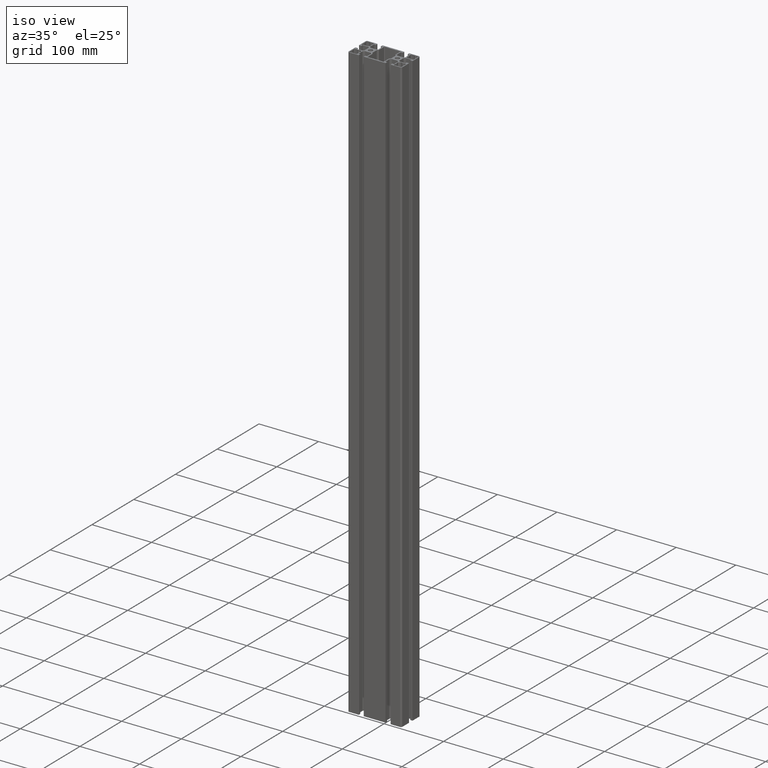
[diagram: clean part render]
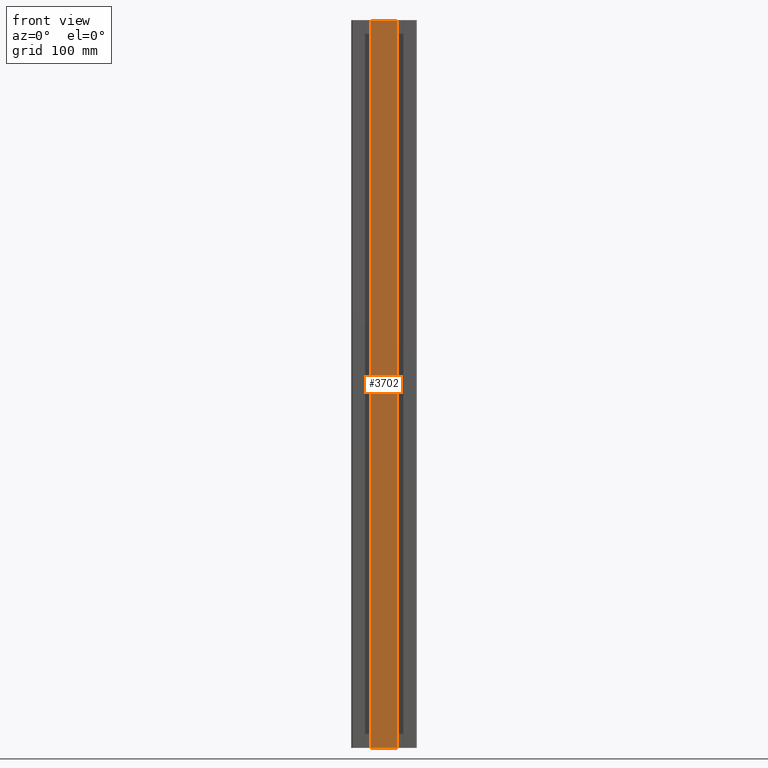
[diagram: tour spotlight — one face highlighted and labeled with its STEP entity id]
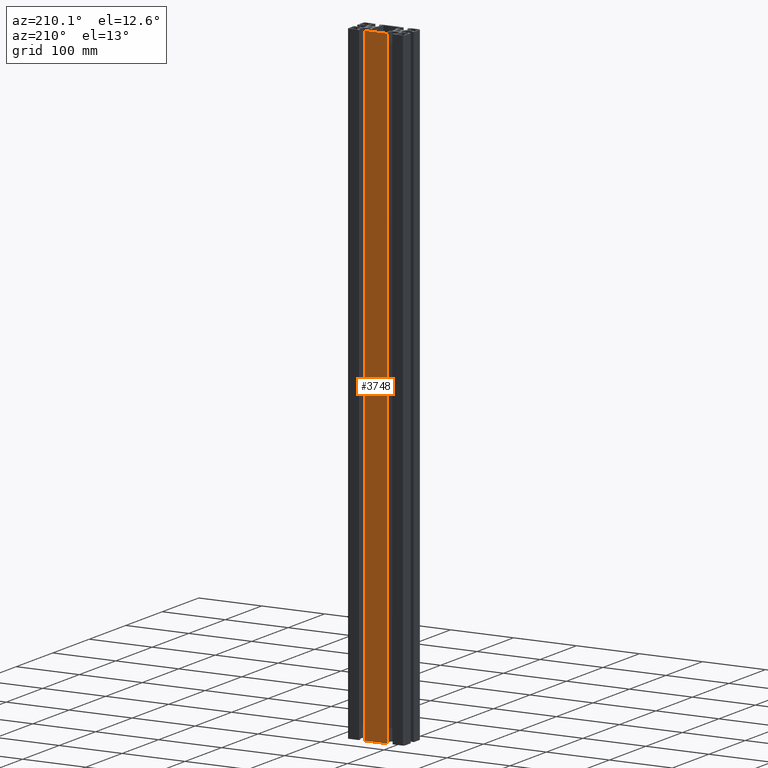
[diagram: tour spotlight — one face highlighted and labeled with its STEP entity id]
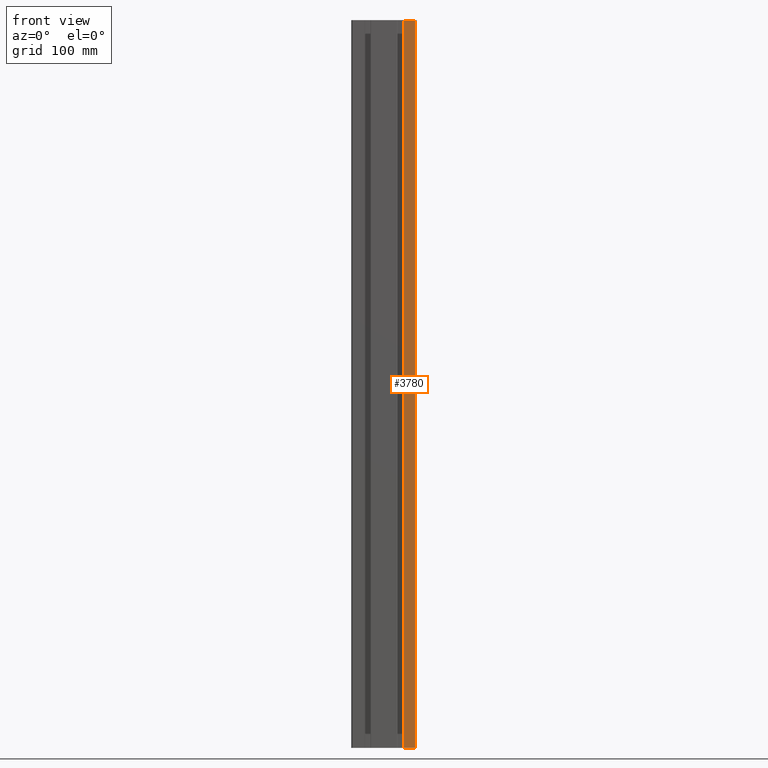
[diagram: tour spotlight — one face highlighted and labeled with its STEP entity id]
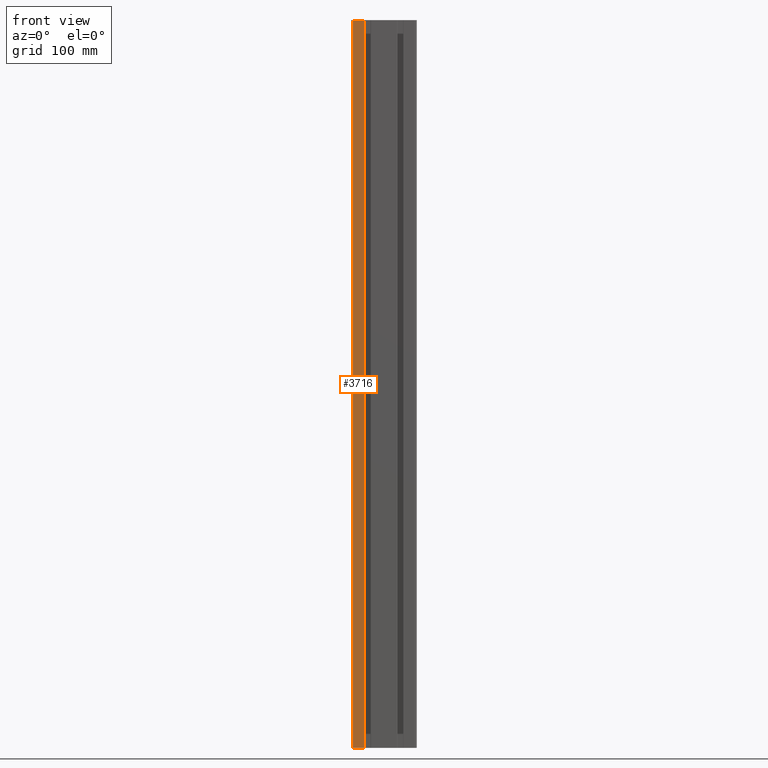
[diagram: tour spotlight — one face highlighted and labeled with its STEP entity id]
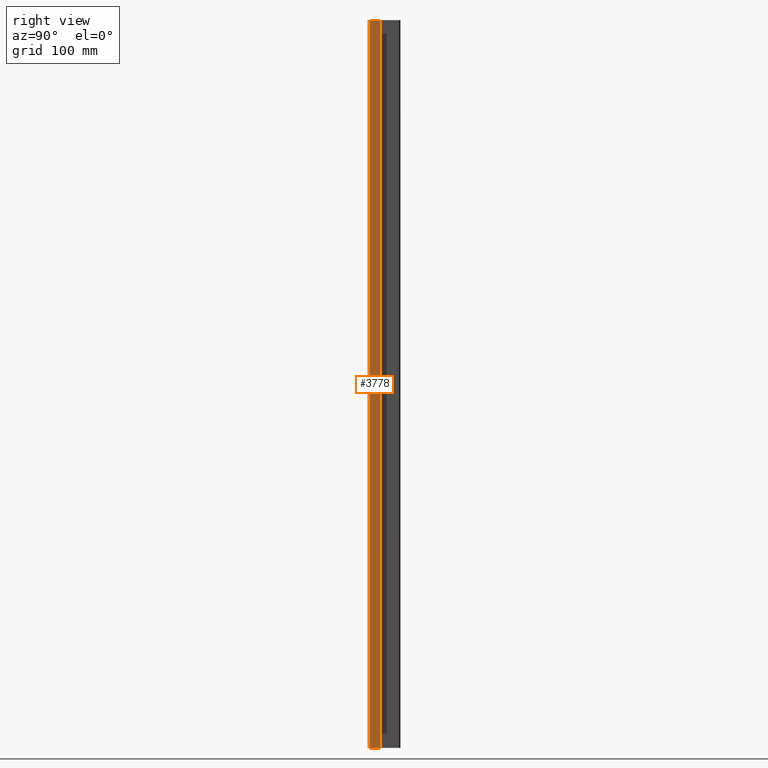
[diagram: tour spotlight — one face highlighted and labeled with its STEP entity id]
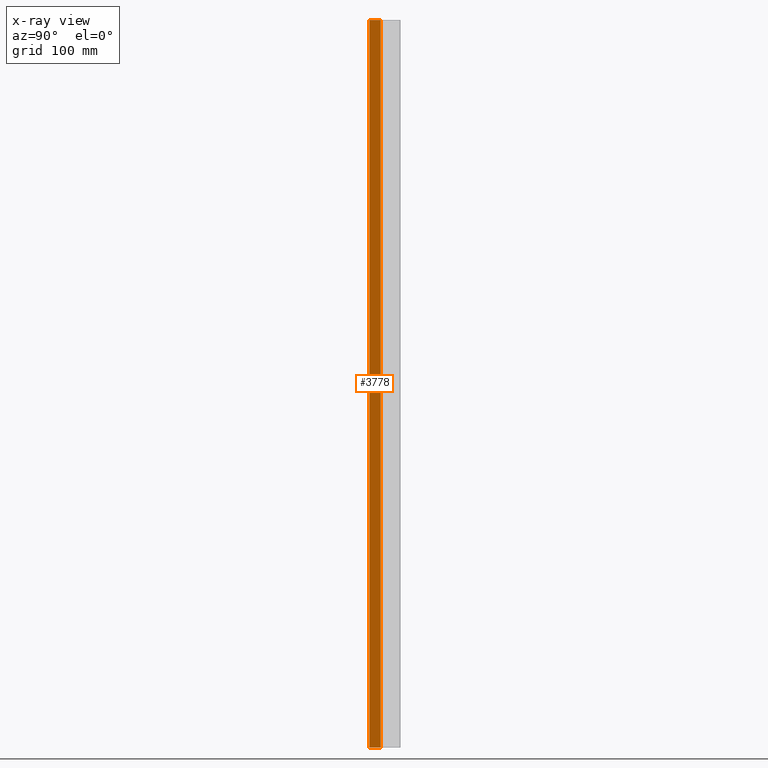
[diagram: x-ray of the same camera — body ghosted, this tour face saturated]
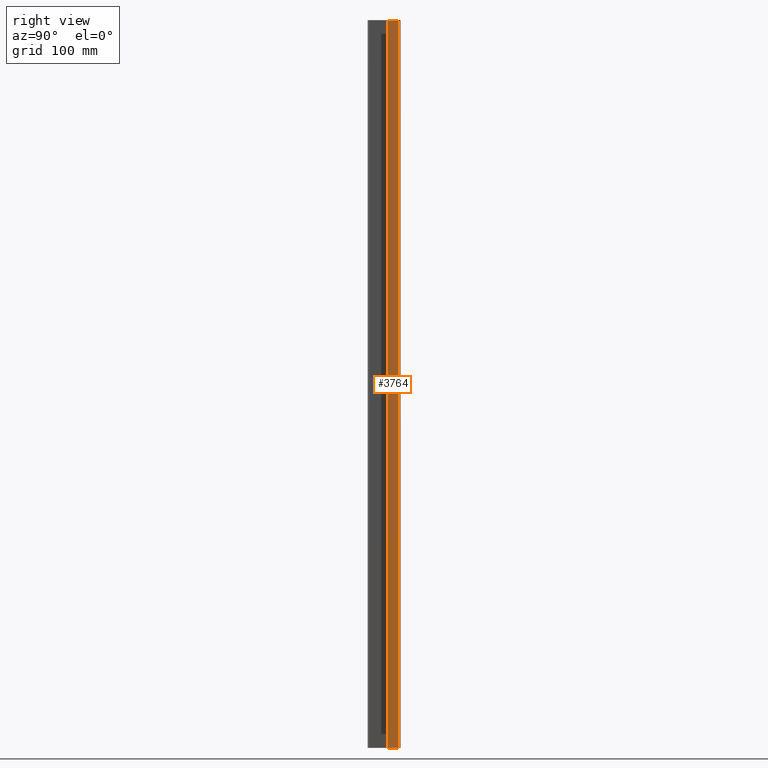
[diagram: tour spotlight — one face highlighted and labeled with its STEP entity id]
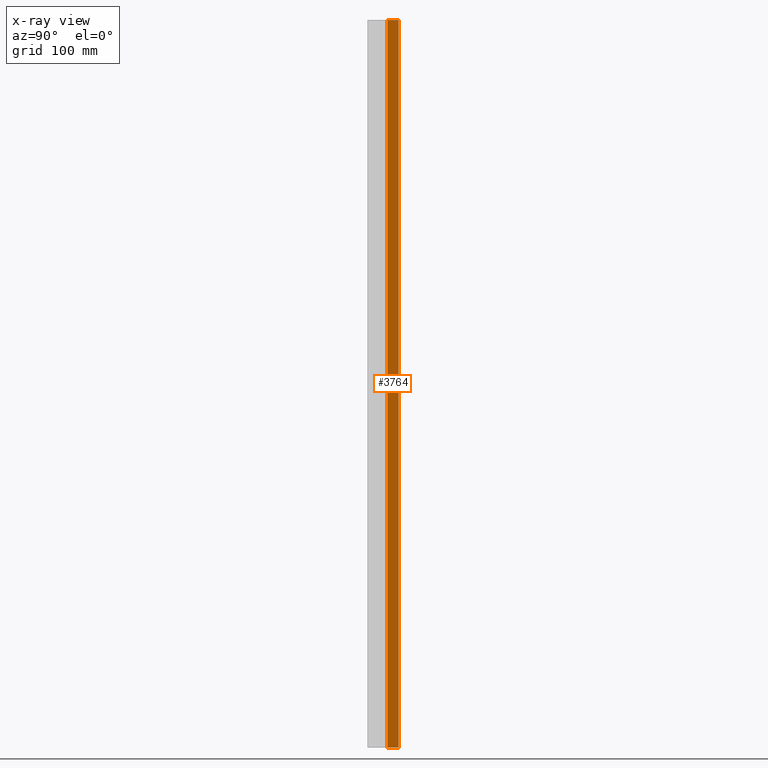
[diagram: x-ray of the same camera — body ghosted, this tour face saturated]
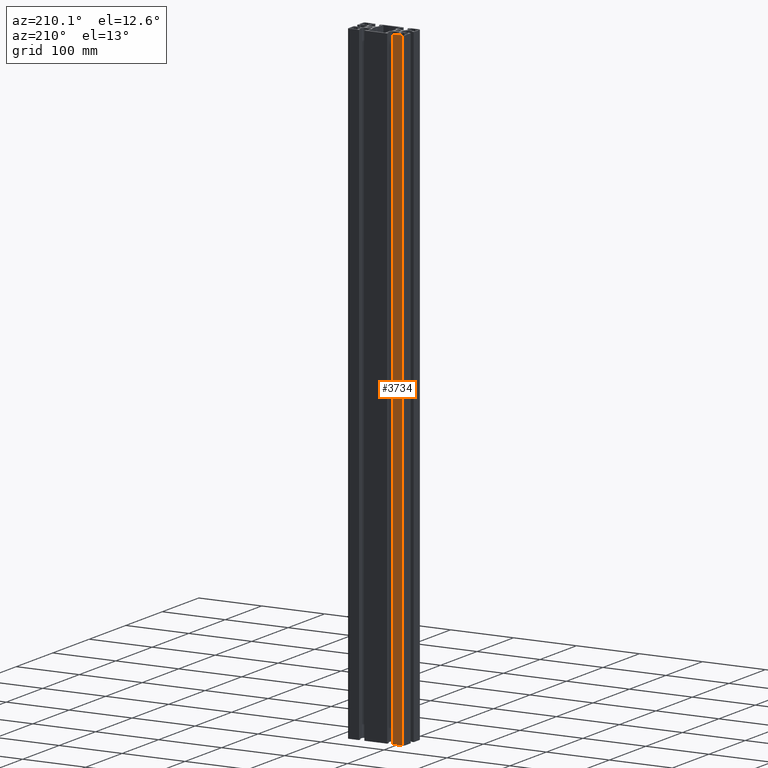
[diagram: tour spotlight — one face highlighted and labeled with its STEP entity id]
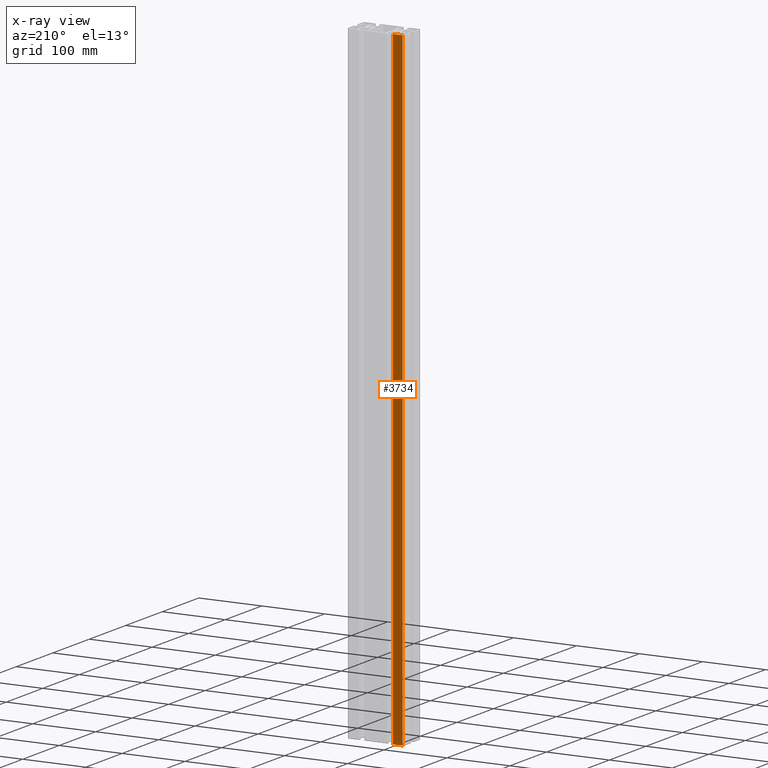
[diagram: x-ray of the same camera — body ghosted, this tour face saturated]
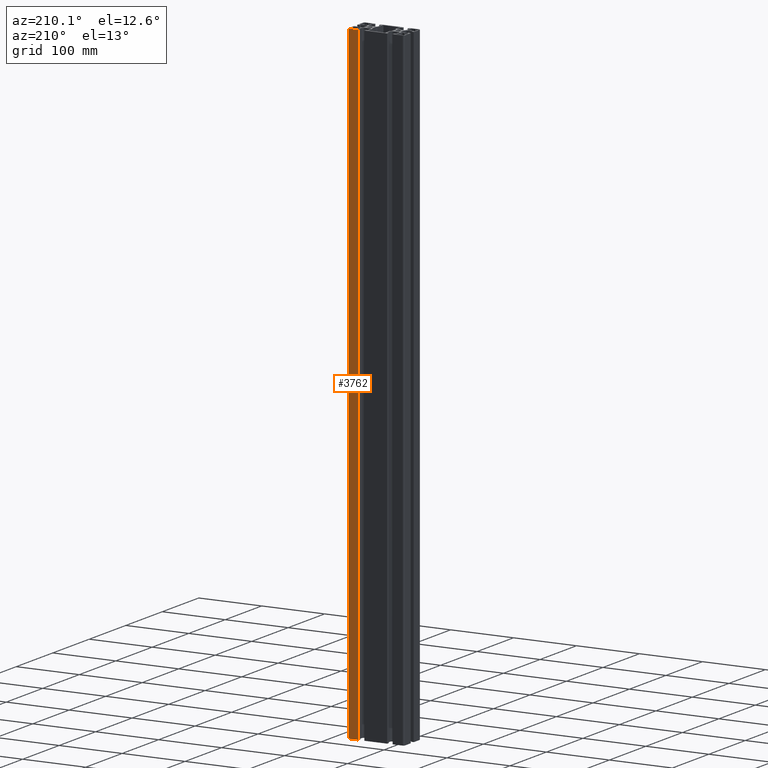
[diagram: tour spotlight — one face highlighted and labeled with its STEP entity id]
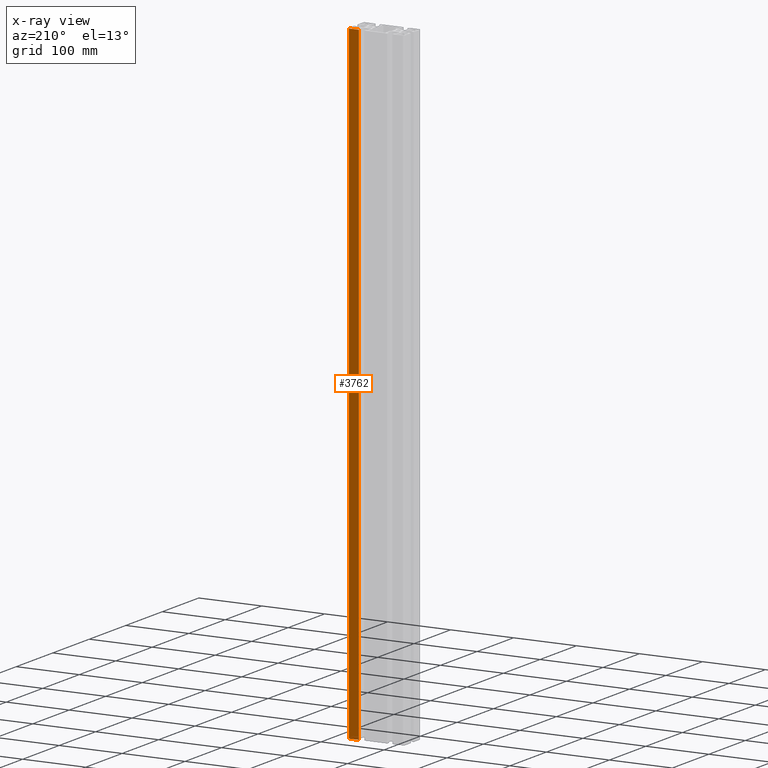
[diagram: x-ray of the same camera — body ghosted, this tour face saturated]
A machine part: a face-by-face anatomy tour. The part has 188 B-rep faces; the first image is the clean iso view, then the 8 largest visible faces are spotlighted one at a time (largest first), each with its STEP entity span.

Face 1 — front view, entity #3702. In plain terms, the highlighted planar face has unit normal (0, -1, 0).
Definition (entity closure, byte-faithful):
#84=PLANE('',#4085);
#236=FACE_OUTER_BOUND('',#438,.T.);
#438=EDGE_LOOP('',(#3179,#3180,#3181,#3182));
#635=LINE('',#5624,#1021);
#759=LINE('',#6057,#1145);
#824=LINE('',#6229,#1210);
#825=LINE('',#6231,#1211);
#1021=VECTOR('',#4486,10.);
#1145=VECTOR('',#4824,10.);
#1210=VECTOR('',#5027,10.);
#1211=VECTOR('',#5030,10.);
#1595=VERTEX_POINT('',#5621);
#1596=VERTEX_POINT('',#5623);
#1797=VERTEX_POINT('',#6054);
#1798=VERTEX_POINT('',#6056);
#2003=EDGE_CURVE('',#1596,#1595,#635,.T.);
#2225=EDGE_CURVE('',#1797,#1798,#759,.T.);
#2312=EDGE_CURVE('',#1595,#1798,#824,.T.);
#2313=EDGE_CURVE('',#1596,#1797,#825,.T.);
#3179=ORIENTED_EDGE('',*,*,#2003,.T.);
#3180=ORIENTED_EDGE('',*,*,#2312,.T.);
#3181=ORIENTED_EDGE('',*,*,#2225,.F.);
#3182=ORIENTED_EDGE('',*,*,#2313,.F.);
#3702=ADVANCED_FACE('',(#236),#84,.T.);
#4085=AXIS2_PLACEMENT_3D('',#6230,#5028,#5029);
#4486=DIRECTION('',(1.,0.,0.));
#4824=DIRECTION('',(1.,0.,0.));
#5027=DIRECTION('',(0.,0.,1.));
#5028=DIRECTION('center_axis',(0.,-1.,0.));
#5029=DIRECTION('ref_axis',(1.,0.,0.));
#5030=DIRECTION('',(0.,0.,1.));
#5621=CARTESIAN_POINT('',(18.05,-22.5,0.));
#5623=CARTESIAN_POINT('',(-18.05,-22.5,0.));
#5624=CARTESIAN_POINT('',(-18.05,-22.5,0.));
#6054=CARTESIAN_POINT('',(-18.05,-22.5,1000.));
#6056=CARTESIAN_POINT('',(18.05,-22.5,1000.));
#6057=CARTESIAN_POINT('',(-18.05,-22.5,1000.));
#6229=CARTESIAN_POINT('',(18.05,-22.5,0.));
#6230=CARTESIAN_POINT('Origin',(-18.05,-22.5,0.));
#6231=CARTESIAN_POINT('',(-18.05,-22.5,0.));

Face 2 — auxiliary view, entity #3748. In plain terms, the highlighted planar face has unit normal (0, 1, 0).
Definition (entity closure, byte-faithful):
#110=PLANE('',#4131);
#282=FACE_OUTER_BOUND('',#484,.T.);
#484=EDGE_LOOP('',(#3363,#3364,#3365,#3366));
#661=LINE('',#5716,#1047);
#733=LINE('',#5965,#1119);
#870=LINE('',#6321,#1256);
#871=LINE('',#6323,#1257);
#1047=VECTOR('',#4552,10.);
#1119=VECTOR('',#4758,10.);
#1256=VECTOR('',#5165,10.);
#1257=VECTOR('',#5168,10.);
#1641=VERTEX_POINT('',#5713);
#1642=VERTEX_POINT('',#5715);
#1751=VERTEX_POINT('',#5962);
#1752=VERTEX_POINT('',#5964);
#2049=EDGE_CURVE('',#1642,#1641,#661,.T.);
#2179=EDGE_CURVE('',#1751,#1752,#733,.T.);
#2358=EDGE_CURVE('',#1641,#1752,#870,.T.);
#2359=EDGE_CURVE('',#1642,#1751,#871,.T.);
#3363=ORIENTED_EDGE('',*,*,#2049,.T.);
#3364=ORIENTED_EDGE('',*,*,#2358,.T.);
#3365=ORIENTED_EDGE('',*,*,#2179,.F.);
#3366=ORIENTED_EDGE('',*,*,#2359,.F.);
#3748=ADVANCED_FACE('',(#282),#110,.T.);
#4131=AXIS2_PLACEMENT_3D('',#6322,#5166,#5167);
#4552=DIRECTION('',(-1.,0.,0.));
#4758=DIRECTION('',(-1.,0.,0.));
#5165=DIRECTION('',(0.,0.,1.));
#5166=DIRECTION('center_axis',(0.,1.,0.));
#5167=DIRECTION('ref_axis',(-1.,0.,0.));
#5168=DIRECTION('',(0.,0.,1.));
#5713=CARTESIAN_POINT('',(-18.05,22.5,0.));
#5715=CARTESIAN_POINT('',(18.0500000000022,22.5,0.));
#5716=CARTESIAN_POINT('',(18.0500000000022,22.5,0.));
#5962=CARTESIAN_POINT('',(18.0500000000022,22.5,1000.));
#5964=CARTESIAN_POINT('',(-18.05,22.5,1000.));
#5965=CARTESIAN_POINT('',(18.0500000000022,22.5,1000.));
#6321=CARTESIAN_POINT('',(-18.05,22.5,0.));
#6322=CARTESIAN_POINT('Origin',(18.0500000000022,22.5,0.));
#6323=CARTESIAN_POINT('',(18.0500000000022,22.5,0.));

Face 3 — front view, entity #3780. In plain terms, the highlighted planar face has unit normal (0, -1, 0).
Definition (entity closure, byte-faithful):
#128=PLANE('',#4163);
#314=FACE_OUTER_BOUND('',#516,.T.);
#516=EDGE_LOOP('',(#3491,#3492,#3493,#3494));
#679=LINE('',#5780,#1065);
#715=LINE('',#5901,#1101);
#902=LINE('',#6385,#1288);
#903=LINE('',#6387,#1289);
#1065=VECTOR('',#4598,10.);
#1101=VECTOR('',#4712,10.);
#1288=VECTOR('',#5261,10.);
#1289=VECTOR('',#5264,10.);
#1673=VERTEX_POINT('',#5777);
#1674=VERTEX_POINT('',#5779);
#1719=VERTEX_POINT('',#5898);
#1720=VERTEX_POINT('',#5900);
#2081=EDGE_CURVE('',#1674,#1673,#679,.T.);
#2147=EDGE_CURVE('',#1719,#1720,#715,.T.);
#2390=EDGE_CURVE('',#1673,#1720,#902,.T.);
#2391=EDGE_CURVE('',#1674,#1719,#903,.T.);
#3491=ORIENTED_EDGE('',*,*,#2081,.T.);
#3492=ORIENTED_EDGE('',*,*,#2390,.T.);
#3493=ORIENTED_EDGE('',*,*,#2147,.F.);
#3494=ORIENTED_EDGE('',*,*,#2391,.F.);
#3780=ADVANCED_FACE('',(#314),#128,.T.);
#4163=AXIS2_PLACEMENT_3D('',#6386,#5262,#5263);
#4598=DIRECTION('',(1.,0.,0.));
#4712=DIRECTION('',(1.,0.,0.));
#5261=DIRECTION('',(0.,0.,1.));
#5262=DIRECTION('center_axis',(0.,-1.,0.));
#5263=DIRECTION('ref_axis',(1.,0.,0.));
#5264=DIRECTION('',(0.,0.,1.));
#5777=CARTESIAN_POINT('',(42.5,-22.5,0.));
#5779=CARTESIAN_POINT('',(26.95,-22.5,0.));
#5780=CARTESIAN_POINT('',(26.95,-22.5,0.));
#5898=CARTESIAN_POINT('',(26.95,-22.5,1000.));
#5900=CARTESIAN_POINT('',(42.5,-22.5,1000.));
#5901=CARTESIAN_POINT('',(26.95,-22.5,1000.));
#6385=CARTESIAN_POINT('',(42.5,-22.5,0.));
#6386=CARTESIAN_POINT('Origin',(26.95,-22.5,0.));
#6387=CARTESIAN_POINT('',(26.95,-22.5,0.));

Face 4 — front view, entity #3716. In plain terms, the highlighted planar face has unit normal (0, -1, 0).
Definition (entity closure, byte-faithful):
#92=PLANE('',#4099);
#250=FACE_OUTER_BOUND('',#452,.T.);
#452=EDGE_LOOP('',(#3235,#3236,#3237,#3238));
#643=LINE('',#5652,#1029);
#751=LINE('',#6029,#1137);
#838=LINE('',#6257,#1224);
#839=LINE('',#6259,#1225);
#1029=VECTOR('',#4506,10.);
#1137=VECTOR('',#4804,10.);
#1224=VECTOR('',#5069,10.);
#1225=VECTOR('',#5072,10.);
#1609=VERTEX_POINT('',#5649);
#1610=VERTEX_POINT('',#5651);
#1783=VERTEX_POINT('',#6026);
#1784=VERTEX_POINT('',#6028);
#2017=EDGE_CURVE('',#1610,#1609,#643,.T.);
#2211=EDGE_CURVE('',#1783,#1784,#751,.T.);
#2326=EDGE_CURVE('',#1609,#1784,#838,.T.);
#2327=EDGE_CURVE('',#1610,#1783,#839,.T.);
#3235=ORIENTED_EDGE('',*,*,#2017,.T.);
#3236=ORIENTED_EDGE('',*,*,#2326,.T.);
#3237=ORIENTED_EDGE('',*,*,#2211,.F.);
#3238=ORIENTED_EDGE('',*,*,#2327,.F.);
#3716=ADVANCED_FACE('',(#250),#92,.T.);
#4099=AXIS2_PLACEMENT_3D('',#6258,#5070,#5071);
#4506=DIRECTION('',(1.,0.,0.));
#4804=DIRECTION('',(1.,0.,0.));
#5069=DIRECTION('',(0.,0.,1.));
#5070=DIRECTION('center_axis',(0.,-1.,0.));
#5071=DIRECTION('ref_axis',(1.,0.,0.));
#5072=DIRECTION('',(0.,0.,1.));
#5649=CARTESIAN_POINT('',(-26.95,-22.5,0.));
#5651=CARTESIAN_POINT('',(-42.5,-22.5,0.));
#5652=CARTESIAN_POINT('',(-42.5,-22.5,0.));
#6026=CARTESIAN_POINT('',(-42.5,-22.5,1000.));
#6028=CARTESIAN_POINT('',(-26.95,-22.5,1000.));
#6029=CARTESIAN_POINT('',(-42.5,-22.5,1000.));
#6257=CARTESIAN_POINT('',(-26.95,-22.5,0.));
#6258=CARTESIAN_POINT('Origin',(-42.5,-22.5,0.));
#6259=CARTESIAN_POINT('',(-42.5,-22.5,0.));

Face 5 — right view, entity #3778. An x-ray twin of the same camera follows (body ghosted, this face saturated) — the face is partly hidden behind the body. In plain terms, the highlighted planar face has unit normal (1, -0, 0).
Definition (entity closure, byte-faithful):
#127=PLANE('',#4161);
#312=FACE_OUTER_BOUND('',#514,.T.);
#514=EDGE_LOOP('',(#3483,#3484,#3485,#3486));
#678=LINE('',#5776,#1064);
#716=LINE('',#5905,#1102);
#900=LINE('',#6381,#1286);
#901=LINE('',#6383,#1287);
#1064=VECTOR('',#4595,10.);
#1102=VECTOR('',#4715,10.);
#1286=VECTOR('',#5255,10.);
#1287=VECTOR('',#5258,10.);
#1671=VERTEX_POINT('',#5773);
#1672=VERTEX_POINT('',#5775);
#1721=VERTEX_POINT('',#5902);
#1722=VERTEX_POINT('',#5904);
#2079=EDGE_CURVE('',#1672,#1671,#678,.T.);
#2149=EDGE_CURVE('',#1721,#1722,#716,.T.);
#2388=EDGE_CURVE('',#1671,#1722,#900,.T.);
#2389=EDGE_CURVE('',#1672,#1721,#901,.T.);
#3483=ORIENTED_EDGE('',*,*,#2079,.T.);
#3484=ORIENTED_EDGE('',*,*,#2388,.T.);
#3485=ORIENTED_EDGE('',*,*,#2149,.F.);
#3486=ORIENTED_EDGE('',*,*,#2389,.F.);
#3778=ADVANCED_FACE('',(#312),#127,.T.);
#4161=AXIS2_PLACEMENT_3D('',#6382,#5256,#5257);
#4595=DIRECTION('',(5.71175832604582E-16,1.,0.));
#4715=DIRECTION('',(5.71175832604582E-16,1.,0.));
#5255=DIRECTION('',(0.,0.,1.));
#5256=DIRECTION('center_axis',(1.,-5.71175832604582E-16,0.));
#5257=DIRECTION('ref_axis',(5.71175832604582E-16,1.,0.));
#5258=DIRECTION('',(0.,0.,1.));
#5773=CARTESIAN_POINT('',(45.,-4.45,0.));
#5775=CARTESIAN_POINT('',(45.,-20.,0.));
#5776=CARTESIAN_POINT('',(45.,-20.,0.));
#5902=CARTESIAN_POINT('',(45.,-20.,1000.));
#5904=CARTESIAN_POINT('',(45.,-4.45,1000.));
#5905=CARTESIAN_POINT('',(45.,-20.,1000.));
#6381=CARTESIAN_POINT('',(45.,-4.45,0.));
#6382=CARTESIAN_POINT('Origin',(45.,-20.,0.));
#6383=CARTESIAN_POINT('',(45.,-20.,0.));

Face 6 — right view, entity #3764. An x-ray twin of the same camera follows (body ghosted, this face saturated) — the face is partly hidden behind the body. In plain terms, the highlighted planar face has unit normal (1, -0, 0).
Definition (entity closure, byte-faithful):
#119=PLANE('',#4147);
#298=FACE_OUTER_BOUND('',#500,.T.);
#500=EDGE_LOOP('',(#3427,#3428,#3429,#3430));
#670=LINE('',#5748,#1056);
#724=LINE('',#5933,#1110);
#886=LINE('',#6353,#1272);
#887=LINE('',#6355,#1273);
#1056=VECTOR('',#4575,10.);
#1110=VECTOR('',#4735,10.);
#1272=VECTOR('',#5213,10.);
#1273=VECTOR('',#5216,10.);
#1657=VERTEX_POINT('',#5745);
#1658=VERTEX_POINT('',#5747);
#1735=VERTEX_POINT('',#5930);
#1736=VERTEX_POINT('',#5932);
#2065=EDGE_CURVE('',#1658,#1657,#670,.T.);
#2163=EDGE_CURVE('',#1735,#1736,#724,.T.);
#2374=EDGE_CURVE('',#1657,#1736,#886,.T.);
#2375=EDGE_CURVE('',#1658,#1735,#887,.T.);
#3427=ORIENTED_EDGE('',*,*,#2065,.T.);
#3428=ORIENTED_EDGE('',*,*,#2374,.T.);
#3429=ORIENTED_EDGE('',*,*,#2163,.F.);
#3430=ORIENTED_EDGE('',*,*,#2375,.F.);
#3764=ADVANCED_FACE('',(#298),#119,.T.);
#4147=AXIS2_PLACEMENT_3D('',#6354,#5214,#5215);
#4575=DIRECTION('',(5.71175832604582E-16,1.,0.));
#4735=DIRECTION('',(5.71175832604582E-16,1.,0.));
#5213=DIRECTION('',(0.,0.,1.));
#5214=DIRECTION('center_axis',(1.,-5.71175832604582E-16,0.));
#5215=DIRECTION('ref_axis',(5.71175832604582E-16,1.,0.));
#5216=DIRECTION('',(0.,0.,1.));
#5745=CARTESIAN_POINT('',(45.,20.,0.));
#5747=CARTESIAN_POINT('',(45.,4.45,0.));
#5748=CARTESIAN_POINT('',(45.,4.45,0.));
#5930=CARTESIAN_POINT('',(45.,4.45,1000.));
#5932=CARTESIAN_POINT('',(45.,20.,1000.));
#5933=CARTESIAN_POINT('',(45.,4.45,1000.));
#6353=CARTESIAN_POINT('',(45.,20.,0.));
#6354=CARTESIAN_POINT('Origin',(45.,4.45,0.));
#6355=CARTESIAN_POINT('',(45.,4.45,0.));

Face 7 — auxiliary view, entity #3734. An x-ray twin of the same camera follows (body ghosted, this face saturated) — the face is partly hidden behind the body. In plain terms, the highlighted planar face has unit normal (0, 1, 0).
Definition (entity closure, byte-faithful):
#102=PLANE('',#4117);
#268=FACE_OUTER_BOUND('',#470,.T.);
#470=EDGE_LOOP('',(#3307,#3308,#3309,#3310));
#653=LINE('',#5688,#1039);
#741=LINE('',#5993,#1127);
#856=LINE('',#6293,#1242);
#857=LINE('',#6295,#1243);
#1039=VECTOR('',#4532,10.);
#1127=VECTOR('',#4778,10.);
#1242=VECTOR('',#5123,10.);
#1243=VECTOR('',#5126,10.);
#1627=VERTEX_POINT('',#5685);
#1628=VERTEX_POINT('',#5687);
#1765=VERTEX_POINT('',#5990);
#1766=VERTEX_POINT('',#5992);
#2035=EDGE_CURVE('',#1628,#1627,#653,.T.);
#2193=EDGE_CURVE('',#1765,#1766,#741,.T.);
#2344=EDGE_CURVE('',#1627,#1766,#856,.T.);
#2345=EDGE_CURVE('',#1628,#1765,#857,.T.);
#3307=ORIENTED_EDGE('',*,*,#2035,.T.);
#3308=ORIENTED_EDGE('',*,*,#2344,.T.);
#3309=ORIENTED_EDGE('',*,*,#2193,.F.);
#3310=ORIENTED_EDGE('',*,*,#2345,.F.);
#3734=ADVANCED_FACE('',(#268),#102,.T.);
#4117=AXIS2_PLACEMENT_3D('',#6294,#5124,#5125);
#4532=DIRECTION('',(-1.,0.,0.));
#4778=DIRECTION('',(-1.,0.,0.));
#5123=DIRECTION('',(0.,0.,1.));
#5124=DIRECTION('center_axis',(0.,1.,0.));
#5125=DIRECTION('ref_axis',(-1.,0.,0.));
#5126=DIRECTION('',(0.,0.,1.));
#5685=CARTESIAN_POINT('',(-42.5,22.5,0.));
#5687=CARTESIAN_POINT('',(-26.95,22.5,0.));
#5688=CARTESIAN_POINT('',(-26.95,22.5,0.));
#5990=CARTESIAN_POINT('',(-26.95,22.5,1000.));
#5992=CARTESIAN_POINT('',(-42.5,22.5,1000.));
#5993=CARTESIAN_POINT('',(-26.95,22.5,1000.));
#6293=CARTESIAN_POINT('',(-42.5,22.5,0.));
#6294=CARTESIAN_POINT('Origin',(-26.95,22.5,0.));
#6295=CARTESIAN_POINT('',(-26.95,22.5,0.));

Face 8 — auxiliary view, entity #3762. An x-ray twin of the same camera follows (body ghosted, this face saturated) — the face is partly hidden behind the body. In plain terms, the highlighted planar face has unit normal (0, 1, 0).
Definition (entity closure, byte-faithful):
#118=PLANE('',#4145);
#296=FACE_OUTER_BOUND('',#498,.T.);
#498=EDGE_LOOP('',(#3419,#3420,#3421,#3422));
#669=LINE('',#5744,#1055);
#725=LINE('',#5937,#1111);
#884=LINE('',#6349,#1270);
#885=LINE('',#6351,#1271);
#1055=VECTOR('',#4572,10.);
#1111=VECTOR('',#4738,10.);
#1270=VECTOR('',#5207,10.);
#1271=VECTOR('',#5210,10.);
#1655=VERTEX_POINT('',#5741);
#1656=VERTEX_POINT('',#5743);
#1737=VERTEX_POINT('',#5934);
#1738=VERTEX_POINT('',#5936);
#2063=EDGE_CURVE('',#1656,#1655,#669,.T.);
#2165=EDGE_CURVE('',#1737,#1738,#725,.T.);
#2372=EDGE_CURVE('',#1655,#1738,#884,.T.);
#2373=EDGE_CURVE('',#1656,#1737,#885,.T.);
#3419=ORIENTED_EDGE('',*,*,#2063,.T.);
#3420=ORIENTED_EDGE('',*,*,#2372,.T.);
#3421=ORIENTED_EDGE('',*,*,#2165,.F.);
#3422=ORIENTED_EDGE('',*,*,#2373,.F.);
#3762=ADVANCED_FACE('',(#296),#118,.T.);
#4145=AXIS2_PLACEMENT_3D('',#6350,#5208,#5209);
#4572=DIRECTION('',(-1.,0.,0.));
#4738=DIRECTION('',(-1.,0.,0.));
#5207=DIRECTION('',(0.,0.,1.));
#5208=DIRECTION('center_axis',(0.,1.,0.));
#5209=DIRECTION('ref_axis',(-1.,0.,0.));
#5210=DIRECTION('',(0.,0.,1.));
#5741=CARTESIAN_POINT('',(26.95,22.5,0.));
#5743=CARTESIAN_POINT('',(42.5,22.5,0.));
#5744=CARTESIAN_POINT('',(42.5,22.5,0.));
#5934=CARTESIAN_POINT('',(42.5,22.5,1000.));
#5936=CARTESIAN_POINT('',(26.95,22.5,1000.));
#5937=CARTESIAN_POINT('',(42.5,22.5,1000.));
#6349=CARTESIAN_POINT('',(26.95,22.5,0.));
#6350=CARTESIAN_POINT('Origin',(42.5,22.5,0.));
#6351=CARTESIAN_POINT('',(42.5,22.5,0.));